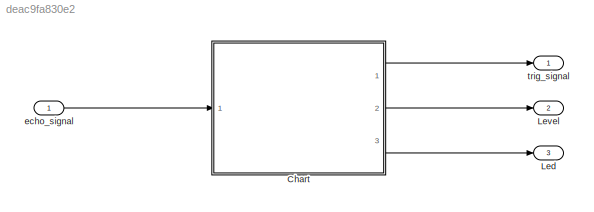
MODEL slx_deac9fa830e2
KIND model
CONFIG AbsTol = auto
CONFIG EnableMultiTasking = off
CONFIG FixedStep = T_sample_control
CONFIG MaxStep = auto
CONFIG MinStep = auto
CONFIG RelTol = 1e-3
CONFIG SampleTimeConstraint = Unconstrained
CONFIG SolverName = FixedStepDiscrete
CONFIG StartTime = 0.0
CONFIG StopTime = inf
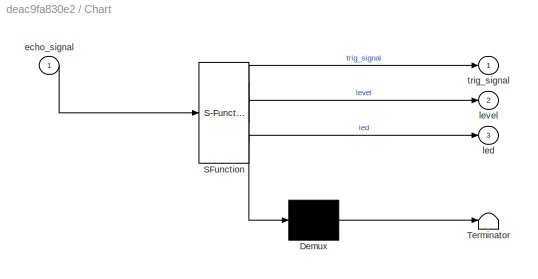
BLOCK [SubSystem] Chart
  ErrorFcn = Stateflow.Translate.translate
  PermitHierarchicalResolution = ExplicitOnly
  Ports = [1, 3]
  RequestExecContextInheritance = off
  SFBlockType = Chart
  TreatAsAtomicUnit = on
BLOCK [Demux] Chart/ Demux 
  Outputs = 1
  Ports = [1, 1]
BLOCK [S-Function] Chart/ SFunction 
  EnableBusSupport = on
  FunctionName = sf_sfun
  PortCounts = [1 4]
  Ports = [1, 4]
  SFcnIsStateOwnerBlock = off
  SFunctionDeploymentMode = off
  Tag = Stateflow S-Function 3
BLOCK [Terminator] Chart/ Terminator 
BLOCK [Inport] Chart/echo_signal
BLOCK [Outport] Chart/led
  Port = 3
BLOCK [Outport] Chart/level
  Port = 2
BLOCK [Outport] Chart/trig_signal
BLOCK [Outport] Led
  OutDataTypeStr = boolean
  Port = 3
BLOCK [Outport] Level
  OutDataTypeStr = uint16
  Port = 2
BLOCK [Inport] echo_signal
  OutDataTypeStr = boolean
  PortDimensions = 1
  SampleTime = T_sample_control
  SignalType = real
BLOCK [Outport] trig_signal
  OutDataTypeStr = boolean
  PortDimensions = 1
  SampleTime = T_sample_control
  SignalType = real
  VarSizeSig = No
LINE Chart:1 -> trig_signal:1
LINE Chart:2 -> Level:1
LINE Chart:3 -> Led:1
LINE echo_signal:1 -> Chart:1
CHART Chart states=15 transitions=24
  STATE_LABEL 'PROCESSING_LOGIC\n'
  STATE_LABEL 'TRIG_SIGNAL_ON\nentry:\ntrig_signal = true;'
  STATE_LABEL 'TRIG_SIGNAL_OFF\nentry:\ntrig_signal = false;\necho_up_check = false;\nexit:\nif echo_up_check == false\n    level = 0;\nend'
  STATE_LABEL 'ECHO_UP\nentry, during:\necho_pulse_duration_us = temporalCount(usec);\nexit:\nmeasures(index) = (echo_pulse_duration_us) / 58;\nlevel = uint16(sum(measures) / 4);\nindex = index + 1;\nif index > 4\n    index = 1;\nend'  <repeated x3 — deduplicated; at blocks: Chart>
  STATE_LABEL 'ECHO_DOWN'
  STATE_LABEL '[echo_signal == false]'
  STATE_LABEL '[echo_signal == true]{echo_up_check = true;}'
  STATE_LABEL 'after(20,usec)'
  STATE_LABEL 'after(60,msec)'
  STATE_LABEL 'TRIG_SIGNAL_ON\nentry:\ntrig_signal = true;'
  STATE_LABEL 'TRIG_SIGNAL_OFF\nentry:\ntrig_signal = false;\necho_up_check = false;\nexit:\nif echo_up_check == false\n    level = 0;\nend'
  STATE_LABEL 'ECHO_DOWN'
  STATE_LABEL '[echo_signal == false]'
  STATE_LABEL '[echo_signal == true]{echo_up_check = true;}'
  STATE_LABEL 'ECHO_DOWN'
  STATE_LABEL 'MONITORING_LOGIC'
  STATE_LABEL 'BLINK_OUTRANGE\nfrequency = 0.5;\n'
  STATE_LABEL 'LED_OFF\nentry:\nled = false;'
  STATE_LABEL 'LED_ON\nentry:\nled = true;'
  STATE_LABEL 'after(frequency/2, sec)'
  STATE_LABEL 'after(frequency/2, sec)'
  STATE_LABEL 'BLINK_INRANGE\nfrequency = 0.1;\n'
  STATE_LABEL 'LED_OFF\nentry:\nled = false;'
  STATE_LABEL 'LED_ON\nentry:\nled = true;'
  STATE_LABEL 'after(frequency - ((single(level)*frequency)/100), sec)'
  STATE_LABEL 'after((single(level)*frequency)/100, sec)'
  STATE_LABEL 'DISCONNECTED_SENSOR\nfrequency = 1;'
  STATE_LABEL 'LED_OFF\nentry:\nled = false;'
  STATE_LABEL 'LED_ON\nentry:\nled = true;'
  STATE_LABEL 'after(frequency/2, sec)'
  STATE_LABEL 'after(frequency/2, sec)'
  STATE_LABEL '[level >=10 && level <=100]'
  STATE_LABEL '[level < 10 || level >100]'
  STATE_LABEL '[level == 0]'
  STATE_LABEL '[level >=10 && level <=100]'
  STATE_LABEL '[level ~= 0 && (level < 10 || level >100)]'
  STATE_LABEL 'BLINK_OUTRANGE\nfrequency = 0.5;\n'
  STATE_LABEL 'LED_OFF\nentry:\nled = false;'
CHART  states=0 transitions=0
